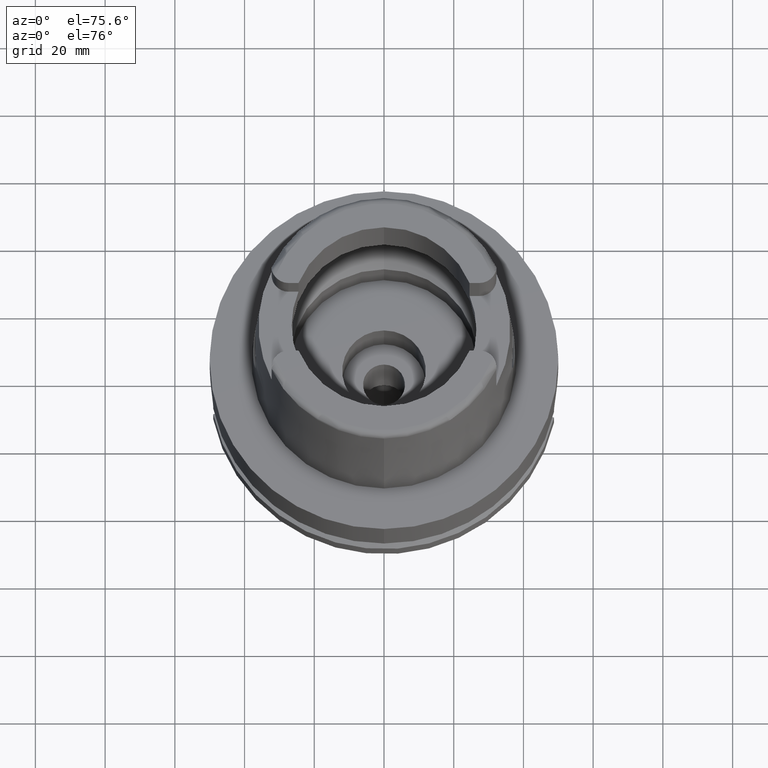
[diagram: clean part render]
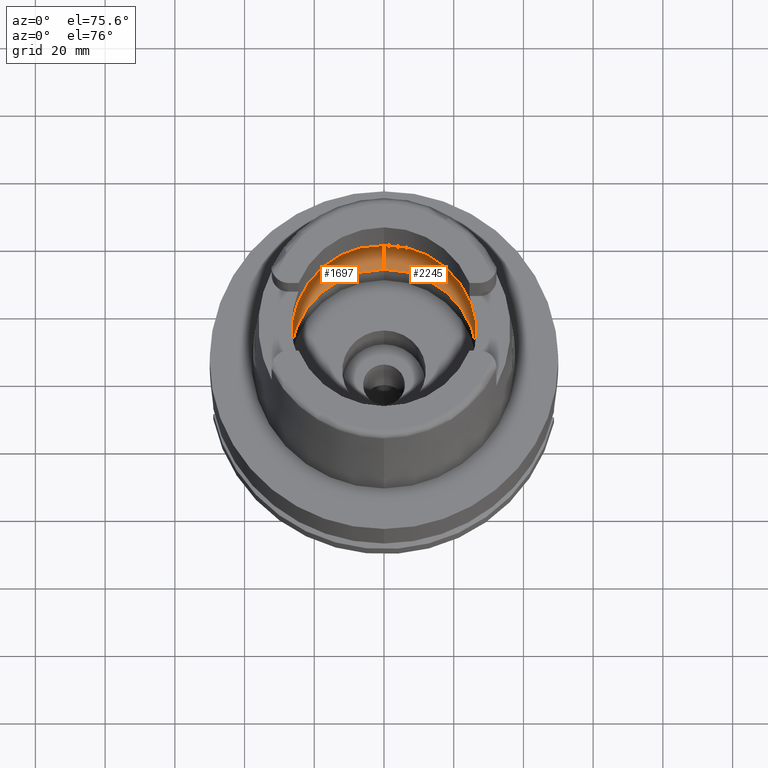
[diagram: same view with one multi-face feature highlighted, each face labeled with its STEP entity id]
A machine part, auxiliary view. The highlighted faces form ONE feature: a constant-radius fillet chain: 2 tangent blend faces with common blend radius 12 mm. The faces share edges in the B-rep.
Their STEP definitions:
[1] entity #1697 (Torus):
#14 = AXIS2_PLACEMENT_3D ( 'NONE', #5105, #1213, #2944 ) ;
#93 = VERTEX_POINT ( 'NONE', #2315 ) ;
#137 = EDGE_CURVE ( 'NONE', #5543, #93, #4136, .T. ) ;
#221 = CARTESIAN_POINT ( 'NONE',  ( -31.40918884336000616, -2.390158196043999705, 9.496624327025999790 ) ) ;
#306 = AXIS2_PLACEMENT_3D ( 'NONE', #5551, #1178, #2904 ) ;
#492 = FACE_OUTER_BOUND ( 'NONE', #3582, .T. ) ;
#526 = DIRECTION ( 'NONE',  ( 0.0000000000000000000, 1.000000000000000000, 0.0000000000000000000 ) ) ;
#632 = AXIS2_PLACEMENT_3D ( 'NONE', #2666, #2632, #526 ) ;
#637 = CARTESIAN_POINT ( 'NONE',  ( 0.0000000000000000000, 0.0000000000000000000, 9.496624327025999790 ) ) ;
#757 = EDGE_CURVE ( 'NONE', #4017, #4584, #4140, .T. ) ;
#795 = DIRECTION ( 'NONE',  ( 1.000000000000000000, 0.0000000000000000000, 0.0000000000000000000 ) ) ;
#902 = EDGE_CURVE ( 'NONE', #1130, #5543, #3701, .T. ) ;
#949 = CIRCLE ( 'NONE', #306, 11.99999999999999822 ) ;
#1024 = CIRCLE ( 'NONE', #5546, 31.50000000000000000 ) ;
#1130 = VERTEX_POINT ( 'NONE', #5412 ) ;
#1178 = DIRECTION ( 'NONE',  ( -1.000000000000000000, 0.0000000000000000000, 0.0000000000000000000 ) ) ;
#1213 = DIRECTION ( 'NONE',  ( 0.0000000000000000000, 0.0000000000000000000, 1.000000000000000000 ) ) ;
#1296 = CARTESIAN_POINT ( 'NONE',  ( -31.48971910754000447, 0.0000000000000000000, 9.000000000000000000 ) ) ;
#1588 = CARTESIAN_POINT ( 'NONE',  ( -31.40918884336000616, 2.390158196043999705, 9.496624327025999790 ) ) ;
#1593 = ORIENTED_EDGE ( 'NONE', *, *, #137, .F. ) ;
#1597 = CARTESIAN_POINT ( 'NONE',  ( -31.40918884336000616, 2.390158196043999705, 9.496624327025999790 ) ) ;
#1687 = CARTESIAN_POINT ( 'NONE',  ( 0.0000000000000000000, 19.50000000000000000, 9.496624327025999790 ) ) ;
#1697 = ADVANCED_FACE ( 'NONE', ( #492 ), #3156, .F. ) ;
#1924 = CARTESIAN_POINT ( 'NONE',  ( -31.48971910754000447, -0.8697454018008697885, 8.999999999999998224 ) ) ;
#2049 = DIRECTION ( 'NONE',  ( 0.0000000000000000000, 0.0000000000000000000, -1.000000000000000000 ) ) ;
#2122 = VERTEX_POINT ( 'NONE', #2894 ) ;
#2213 = ORIENTED_EDGE ( 'NONE', *, *, #3901, .F. ) ;
#2280 = CIRCLE ( 'NONE', #5373, 11.99999999999999822 ) ;
#2315 = CARTESIAN_POINT ( 'NONE',  ( 0.0000000000000000000, 31.50000000000000000, 9.496624327025999790 ) ) ;
#2430 = CARTESIAN_POINT ( 'NONE',  ( -31.48971910754000447, 0.0000000000000000000, 9.000000000000000000 ) ) ;
#2454 = CARTESIAN_POINT ( 'NONE',  ( -31.48971910754000447, 0.8697454016785111097, 9.000000000000001776 ) ) ;
#2632 = DIRECTION ( 'NONE',  ( 0.0000000000000000000, 0.0000000000000000000, 1.000000000000000000 ) ) ;
#2666 = CARTESIAN_POINT ( 'NONE',  ( 0.0000000000000000000, 0.0000000000000000000, 0.04993178413037000635 ) ) ;
#2788 = ORIENTED_EDGE ( 'NONE', *, *, #902, .F. ) ;
#2799 = CARTESIAN_POINT ( 'NONE',  ( -31.46287568614665986, -1.684656700029165899, 9.190219625035021878 ) ) ;
#2804 = VERTEX_POINT ( 'NONE', #3891 ) ;
#2854 = DIRECTION ( 'NONE',  ( 0.0000000000000000000, -1.000000000000000000, 0.0000000000000000000 ) ) ;
#2894 = CARTESIAN_POINT ( 'NONE',  ( -31.40918884336000616, -2.390158196043999705, 9.496624327025999790 ) ) ;
#2904 = DIRECTION ( 'NONE',  ( 0.0000000000000000000, -0.6166666666667049990, -0.7872243785746061429 ) ) ;
#2944 = DIRECTION ( 'NONE',  ( 0.0000000000000000000, 1.000000000000000000, 0.0000000000000000000 ) ) ;
#2964 = ORIENTED_EDGE ( 'NONE', *, *, #4775, .F. ) ;
#3156 = TOROIDAL_SURFACE ( 'NONE', #14, 19.50000000000000000, 12.00000000000000000 ) ;
#3302 = CARTESIAN_POINT ( 'NONE',  ( -31.46287568614665986, 1.684656699916923683, 9.190219624986275093 ) ) ;
#3582 = EDGE_LOOP ( 'NONE', ( #2213, #2964, #5183, #5347, #1593, #2788, #5235 ) ) ;
#3595 = AXIS2_PLACEMENT_3D ( 'NONE', #3965, #2049, #4660 ) ;
#3701 = B_SPLINE_CURVE_WITH_KNOTS ( 'NONE', 3,
 ( #1296, #2454, #3302, #1588 ),
 .UNSPECIFIED., .F., .F.,
 ( 4, 4 ),
 ( 0.0000000000000000000, 1.000000000000000000 ),
 .UNSPECIFIED. ) ;
#3798 = DIRECTION ( 'NONE',  ( 0.0000000000000000000, 0.6166666666667049990, -0.7872243785746061429 ) ) ;
#3891 = CARTESIAN_POINT ( 'NONE',  ( 0.0000000000000000000, -31.50000000000000000, 9.496624327025999790 ) ) ;
#3901 = EDGE_CURVE ( 'NONE', #2804, #2122, #1024, .T. ) ;
#3936 = EDGE_CURVE ( 'NONE', #2122, #1130, #5380, .T. ) ;
#3965 = CARTESIAN_POINT ( 'NONE',  ( 0.0000000000000000000, 0.0000000000000000000, 9.496624327025999790 ) ) ;
#4017 = VERTEX_POINT ( 'NONE', #5234 ) ;
#4136 = CIRCLE ( 'NONE', #3595, 31.49999999999998934 ) ;
#4140 = CIRCLE ( 'NONE', #632, 26.89999999999999858 ) ;
#4182 = DIRECTION ( 'NONE',  ( 0.0000000000000000000, 0.0000000000000000000, -1.000000000000000000 ) ) ;
#4584 = VERTEX_POINT ( 'NONE', #4931 ) ;
#4660 = DIRECTION ( 'NONE',  ( -0.9971171061384295209, 0.07587803796965221503, 0.0000000000000000000 ) ) ;
#4775 = EDGE_CURVE ( 'NONE', #4584, #2804, #949, .T. ) ;
#4931 = CARTESIAN_POINT ( 'NONE',  ( 0.0000000000000000000, -26.89999999999999858, 0.04993178413037000635 ) ) ;
#5105 = CARTESIAN_POINT ( 'NONE',  ( 0.0000000000000000000, 0.0000000000000000000, 9.496624327025999790 ) ) ;
#5161 = EDGE_CURVE ( 'NONE', #4017, #93, #2280, .T. ) ;
#5183 = ORIENTED_EDGE ( 'NONE', *, *, #757, .F. ) ;
#5234 = CARTESIAN_POINT ( 'NONE',  ( 0.0000000000000000000, 26.89999999999999858, 0.04993178413037000635 ) ) ;
#5235 = ORIENTED_EDGE ( 'NONE', *, *, #3936, .F. ) ;
#5347 = ORIENTED_EDGE ( 'NONE', *, *, #5161, .T. ) ;
#5373 = AXIS2_PLACEMENT_3D ( 'NONE', #1687, #795, #3798 ) ;
#5380 = B_SPLINE_CURVE_WITH_KNOTS ( 'NONE', 3,
 ( #221, #2799, #1924, #2430 ),
 .UNSPECIFIED., .F., .F.,
 ( 4, 4 ),
 ( 0.0000000000000000000, 1.000000000000000000 ),
 .UNSPECIFIED. ) ;
#5412 = CARTESIAN_POINT ( 'NONE',  ( -31.48971910754000447, 0.0000000000000000000, 9.000000000000000000 ) ) ;
#5543 = VERTEX_POINT ( 'NONE', #1597 ) ;
#5546 = AXIS2_PLACEMENT_3D ( 'NONE', #637, #4182, #2854 ) ;
#5551 = CARTESIAN_POINT ( 'NONE',  ( 0.0000000000000000000, -19.50000000000000000, 9.496624327025999790 ) ) ;
[2] entity #2245 (Torus):
#75 = TOROIDAL_SURFACE ( 'NONE', #5485, 19.50000000000000000, 12.00000000000000000 ) ;
#93 = VERTEX_POINT ( 'NONE', #2315 ) ;
#119 = VERTEX_POINT ( 'NONE', #3827 ) ;
#306 = AXIS2_PLACEMENT_3D ( 'NONE', #5551, #1178, #2904 ) ;
#477 = DIRECTION ( 'NONE',  ( 0.0000000000000000000, 0.0000000000000000000, -1.000000000000000000 ) ) ;
#534 = ORIENTED_EDGE ( 'NONE', *, *, #5161, .F. ) ;
#585 = CIRCLE ( 'NONE', #4370, 26.89999999999999858 ) ;
#586 = AXIS2_PLACEMENT_3D ( 'NONE', #2395, #3191, #4613 ) ;
#704 = CARTESIAN_POINT ( 'NONE',  ( 31.48971910754000447, 0.0000000000000000000, 9.000000000000000000 ) ) ;
#795 = DIRECTION ( 'NONE',  ( 1.000000000000000000, 0.0000000000000000000, 0.0000000000000000000 ) ) ;
#949 = CIRCLE ( 'NONE', #306, 11.99999999999999822 ) ;
#1062 = EDGE_CURVE ( 'NONE', #5252, #3424, #5503, .T. ) ;
#1091 = CARTESIAN_POINT ( 'NONE',  ( 31.48971910753999026, 0.8697454017787721314, 9.000000000000001776 ) ) ;
#1178 = DIRECTION ( 'NONE',  ( -1.000000000000000000, 0.0000000000000000000, 0.0000000000000000000 ) ) ;
#1332 = CIRCLE ( 'NONE', #2041, 31.50000000000000000 ) ;
#1455 = EDGE_LOOP ( 'NONE', ( #3003, #2835, #534, #3823, #4601, #2360, #3320 ) ) ;
#1687 = CARTESIAN_POINT ( 'NONE',  ( 0.0000000000000000000, 19.50000000000000000, 9.496624327025999790 ) ) ;
#1856 = CARTESIAN_POINT ( 'NONE',  ( 31.40918884336000616, -2.390158196043999705, 9.496624327025999790 ) ) ;
#1927 = CIRCLE ( 'NONE', #586, 31.49999999999998934 ) ;
#2041 = AXIS2_PLACEMENT_3D ( 'NONE', #2214, #477, #2185 ) ;
#2071 = CARTESIAN_POINT ( 'NONE',  ( 0.0000000000000000000, 0.0000000000000000000, 0.04993178413037000635 ) ) ;
#2138 = CARTESIAN_POINT ( 'NONE',  ( 31.48971910754000447, 0.0000000000000000000, 9.000000000000000000 ) ) ;
#2166 = DIRECTION ( 'NONE',  ( 0.0000000000000000000, 0.0000000000000000000, 1.000000000000000000 ) ) ;
#2185 = DIRECTION ( 'NONE',  ( 0.0000000000000000000, 1.000000000000000000, 0.0000000000000000000 ) ) ;
#2214 = CARTESIAN_POINT ( 'NONE',  ( 0.0000000000000000000, 0.0000000000000000000, 9.496624327025999790 ) ) ;
#2245 = ADVANCED_FACE ( 'NONE', ( #4229 ), #75, .F. ) ;
#2280 = CIRCLE ( 'NONE', #5373, 11.99999999999999822 ) ;
#2315 = CARTESIAN_POINT ( 'NONE',  ( 0.0000000000000000000, 31.50000000000000000, 9.496624327025999790 ) ) ;
#2360 = ORIENTED_EDGE ( 'NONE', *, *, #4468, .F. ) ;
#2395 = CARTESIAN_POINT ( 'NONE',  ( 0.0000000000000000000, 0.0000000000000000000, 9.496624327025999790 ) ) ;
#2672 = EDGE_CURVE ( 'NONE', #93, #119, #1332, .T. ) ;
#2804 = VERTEX_POINT ( 'NONE', #3891 ) ;
#2835 = ORIENTED_EDGE ( 'NONE', *, *, #2672, .F. ) ;
#2904 = DIRECTION ( 'NONE',  ( 0.0000000000000000000, -0.6166666666667049990, -0.7872243785746061429 ) ) ;
#2981 = DIRECTION ( 'NONE',  ( 0.0000000000000000000, -1.000000000000000000, 0.0000000000000000000 ) ) ;
#3003 = ORIENTED_EDGE ( 'NONE', *, *, #5144, .F. ) ;
#3191 = DIRECTION ( 'NONE',  ( 0.0000000000000000000, 0.0000000000000000000, -1.000000000000000000 ) ) ;
#3210 = CARTESIAN_POINT ( 'NONE',  ( 31.46287568614665986, -1.684656699965325632, 9.190219625007294724 ) ) ;
#3320 = ORIENTED_EDGE ( 'NONE', *, *, #1062, .F. ) ;
#3424 = VERTEX_POINT ( 'NONE', #1856 ) ;
#3714 = CARTESIAN_POINT ( 'NONE',  ( 31.40918884336000616, -2.390158196043999705, 9.496624327025999790 ) ) ;
#3798 = DIRECTION ( 'NONE',  ( 0.0000000000000000000, 0.6166666666667049990, -0.7872243785746061429 ) ) ;
#3823 = ORIENTED_EDGE ( 'NONE', *, *, #5403, .F. ) ;
#3827 = CARTESIAN_POINT ( 'NONE',  ( 31.40918884336000616, 2.390158196043999705, 9.496624327025999790 ) ) ;
#3891 = CARTESIAN_POINT ( 'NONE',  ( 0.0000000000000000000, -31.50000000000000000, 9.496624327025999790 ) ) ;
#4017 = VERTEX_POINT ( 'NONE', #5234 ) ;
#4086 = CARTESIAN_POINT ( 'NONE',  ( 31.40918884336000616, 2.390158196043999705, 9.496624327025999790 ) ) ;
#4112 = CARTESIAN_POINT ( 'NONE',  ( 31.48971910754000447, 0.0000000000000000000, 9.000000000000000000 ) ) ;
#4229 = FACE_OUTER_BOUND ( 'NONE', #1455, .T. ) ;
#4370 = AXIS2_PLACEMENT_3D ( 'NONE', #2071, #4712, #2981 ) ;
#4456 = CARTESIAN_POINT ( 'NONE',  ( 31.48971910753999026, -0.8697454017312684638, 8.999999999999998224 ) ) ;
#4468 = EDGE_CURVE ( 'NONE', #3424, #2804, #1927, .T. ) ;
#4584 = VERTEX_POINT ( 'NONE', #4931 ) ;
#4601 = ORIENTED_EDGE ( 'NONE', *, *, #4775, .T. ) ;
#4613 = DIRECTION ( 'NONE',  ( 0.9971171061384295209, -0.07587803796965221503, 0.0000000000000000000 ) ) ;
#4630 = CARTESIAN_POINT ( 'NONE',  ( 0.0000000000000000000, 0.0000000000000000000, 9.496624327025999790 ) ) ;
#4712 = DIRECTION ( 'NONE',  ( 0.0000000000000000000, 0.0000000000000000000, 1.000000000000000000 ) ) ;
#4775 = EDGE_CURVE ( 'NONE', #4584, #2804, #949, .T. ) ;
#4931 = CARTESIAN_POINT ( 'NONE',  ( 0.0000000000000000000, -26.89999999999999858, 0.04993178413037000635 ) ) ;
#5144 = EDGE_CURVE ( 'NONE', #119, #5252, #5368, .T. ) ;
#5161 = EDGE_CURVE ( 'NONE', #4017, #93, #2280, .T. ) ;
#5185 = DIRECTION ( 'NONE',  ( 0.0000000000000000000, 1.000000000000000000, 0.0000000000000000000 ) ) ;
#5234 = CARTESIAN_POINT ( 'NONE',  ( 0.0000000000000000000, 26.89999999999999858, 0.04993178413037000635 ) ) ;
#5252 = VERTEX_POINT ( 'NONE', #2138 ) ;
#5368 = B_SPLINE_CURVE_WITH_KNOTS ( 'NONE', 3,
 ( #4086, #5414, #1091, #4112 ),
 .UNSPECIFIED., .F., .F.,
 ( 4, 4 ),
 ( 0.0000000000000000000, 1.000000000000000000 ),
 .UNSPECIFIED. ) ;
#5373 = AXIS2_PLACEMENT_3D ( 'NONE', #1687, #795, #3798 ) ;
#5403 = EDGE_CURVE ( 'NONE', #4584, #4017, #585, .T. ) ;
#5414 = CARTESIAN_POINT ( 'NONE',  ( 31.46287568614665986, 1.684656700008886121, 9.190219625026216477 ) ) ;
#5485 = AXIS2_PLACEMENT_3D ( 'NONE', #4630, #2166, #5185 ) ;
#5503 = B_SPLINE_CURVE_WITH_KNOTS ( 'NONE', 3,
 ( #704, #4456, #3210, #3714 ),
 .UNSPECIFIED., .F., .F.,
 ( 4, 4 ),
 ( 0.0000000000000000000, 1.000000000000000000 ),
 .UNSPECIFIED. ) ;
#5551 = CARTESIAN_POINT ( 'NONE',  ( 0.0000000000000000000, -19.50000000000000000, 9.496624327025999790 ) ) ;